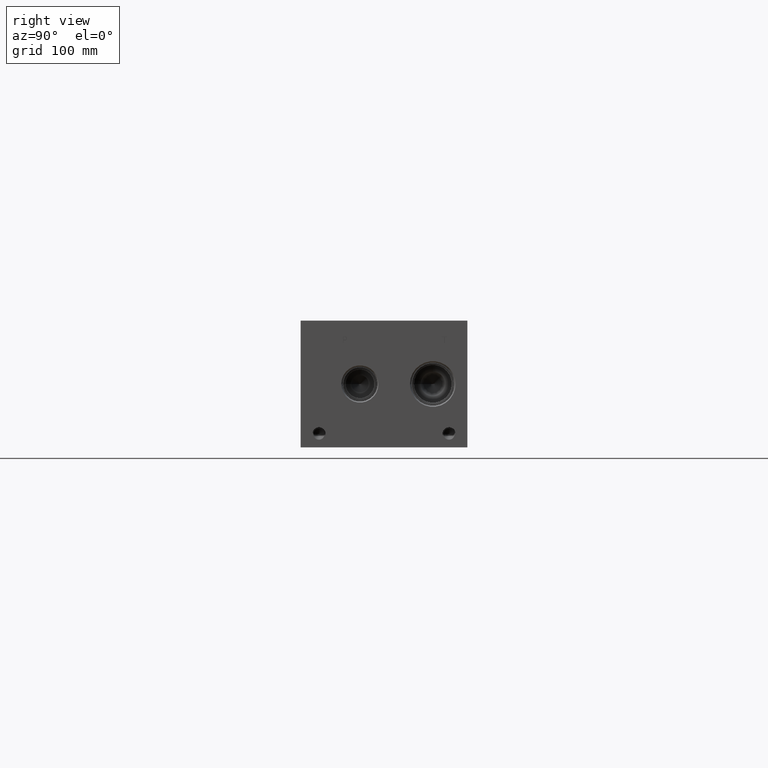
[diagram: clean part render]
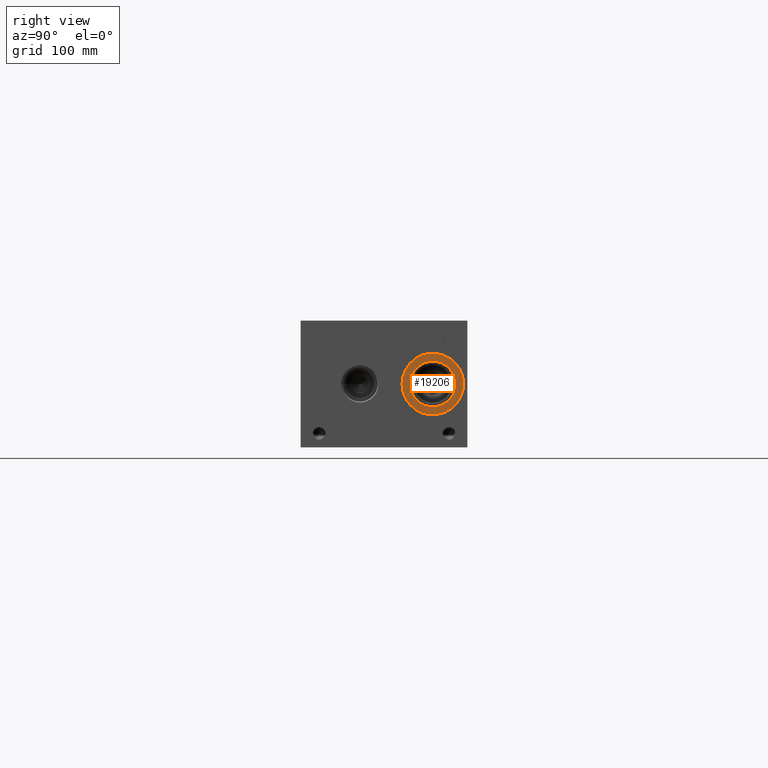
[diagram: same view with one face highlighted and labeled with its STEP entity id]
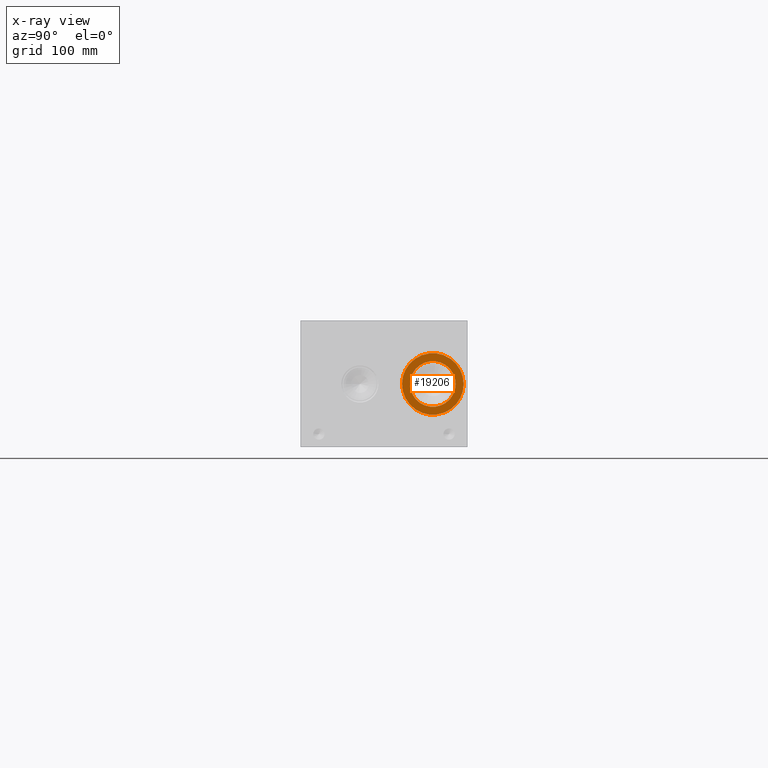
[diagram: x-ray of the same camera — body ghosted, the highlighted face saturated]
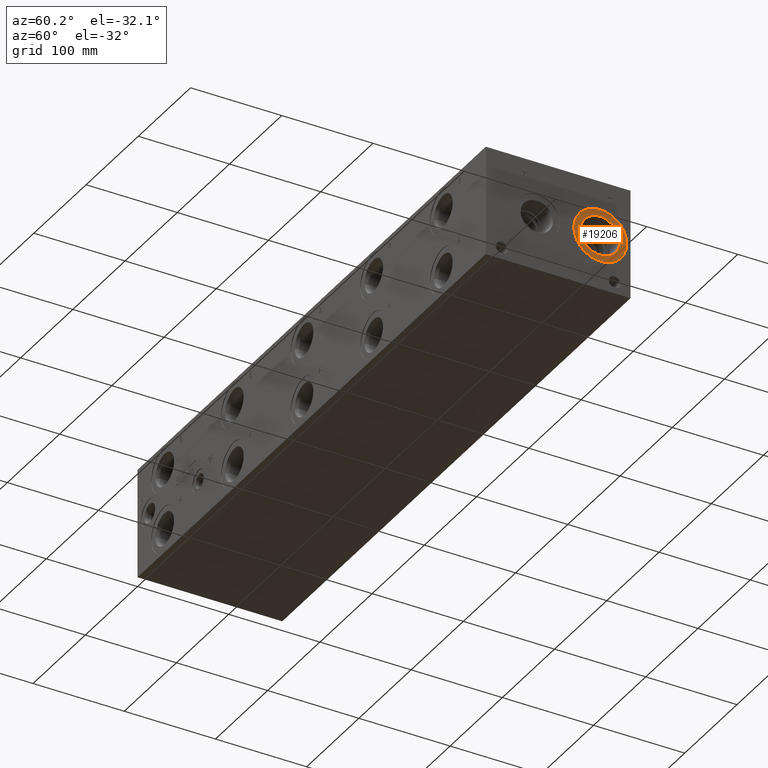
[diagram: same view with one face highlighted and labeled with its STEP entity id]
A machine part, right view. The second image highlights one B-rep face of the part: STEP entity #19206.
The next image is the same camera in x-ray: the body ghosted, the highlighted face saturated — about 0% of this face is hidden behind the body in this view.
A second angle (auxiliary view) of the same face is appended — the face is thin or edge-on in the first view.
In plain terms, the highlighted planar face has unit normal (1, 0, 0).
Its self-contained STEP definition (entity closure, byte-faithful):
#888=CIRCLE('',#20359,29.2862);
#889=CIRCLE('',#20360,29.2862);
#890=CIRCLE('',#20361,21.7551);
#1800=FACE_BOUND('',#3849,.T.);
#2709=FACE_OUTER_BOUND('',#3848,.T.);
#3848=EDGE_LOOP('',(#16167,#16168));
#3849=EDGE_LOOP('',(#16169));
#8782=VERTEX_POINT('',#32700);
#8783=VERTEX_POINT('',#32701);
#8784=VERTEX_POINT('',#32704);
#11371=EDGE_CURVE('',#8782,#8783,#888,.T.);
#11372=EDGE_CURVE('',#8783,#8782,#889,.T.);
#11373=EDGE_CURVE('',#8784,#8784,#890,.T.);
#16167=ORIENTED_EDGE('',*,*,#11371,.T.);
#16168=ORIENTED_EDGE('',*,*,#11372,.T.);
#16169=ORIENTED_EDGE('',*,*,#11373,.F.);
#17772=PLANE('',#20358);
#19206=ADVANCED_FACE('',(#2709,#1800),#17772,.T.);
#20358=AXIS2_PLACEMENT_3D('',#32699,#24202,#24203);
#20359=AXIS2_PLACEMENT_3D('',#32702,#24204,#24205);
#20360=AXIS2_PLACEMENT_3D('',#32703,#24206,#24207);
#20361=AXIS2_PLACEMENT_3D('',#32705,#24208,#24209);
#24202=DIRECTION('center_axis',(1.,0.,0.));
#24203=DIRECTION('ref_axis',(0.,1.,0.));
#24204=DIRECTION('center_axis',(1.,0.,0.));
#24205=DIRECTION('ref_axis',(0.,1.,0.));
#24206=DIRECTION('center_axis',(1.,0.,0.));
#24207=DIRECTION('ref_axis',(0.,1.,0.));
#24208=DIRECTION('center_axis',(1.,0.,0.));
#24209=DIRECTION('ref_axis',(0.,1.,0.));
#32699=CARTESIAN_POINT('Origin',(665.9626,125.8316,60.325));
#32700=CARTESIAN_POINT('',(665.9626,155.1178,60.325));
#32701=CARTESIAN_POINT('',(665.9626,96.5454,60.325));
#32702=CARTESIAN_POINT('Origin',(665.9626,125.8316,60.325));
#32703=CARTESIAN_POINT('Origin',(665.9626,125.8316,60.325));
#32704=CARTESIAN_POINT('',(665.9626,104.0765,60.325));
#32705=CARTESIAN_POINT('Origin',(665.9626,125.8316,60.325));